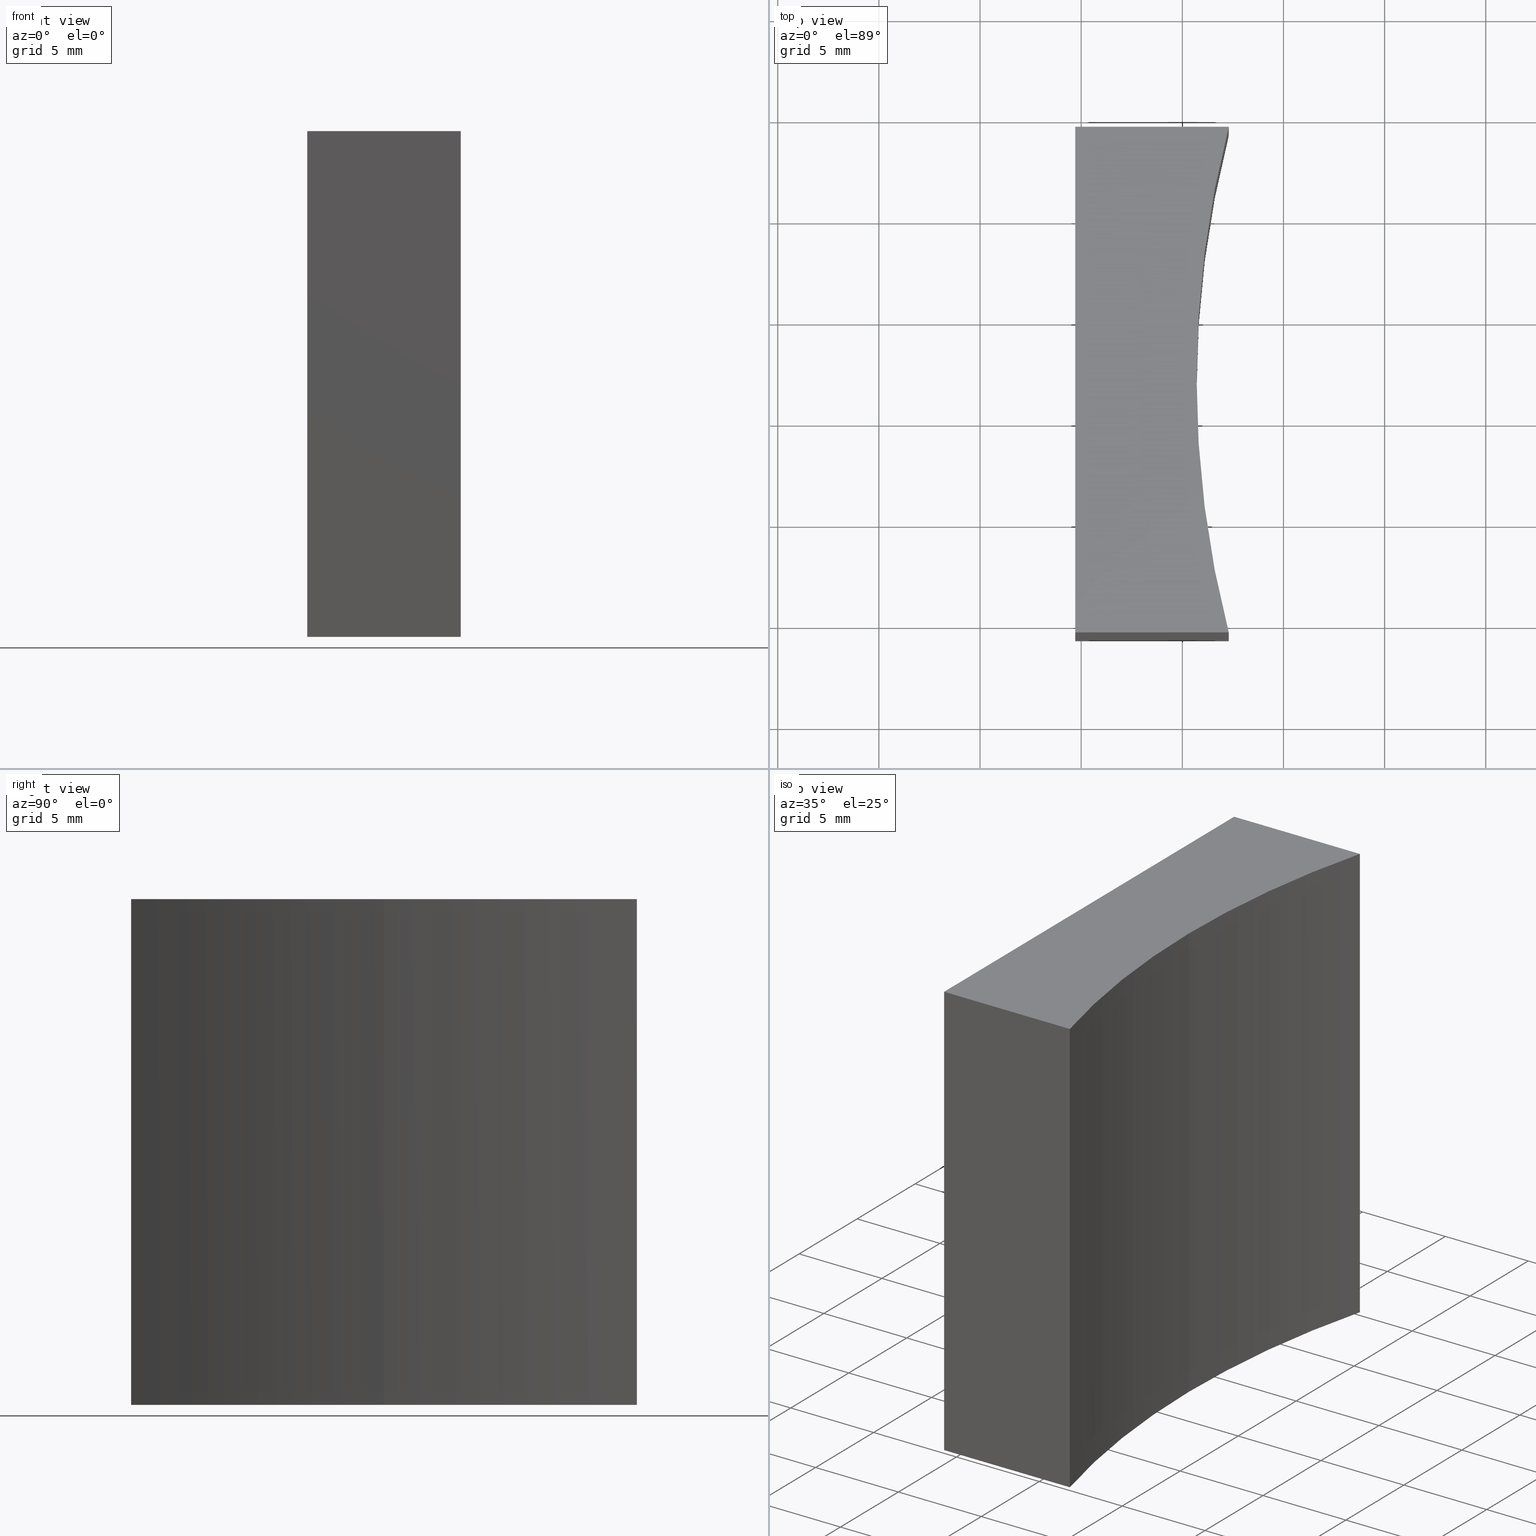
[diagram: canonical four-view strip — front | top / right | iso, engineering-drawing reading convention]
A machine part, canonical four-view strip (front | top / right | iso — engineering-drawing reading convention). The complete STEP part file that produces these views, byte-faithful:
ISO-10303-21;
HEADER;
FILE_DESCRIPTION (( 'STEP AP214' ),
    '1' );
FILE_NAME ('280015.STEP',
    '2019-08-08T02:32:34',
    ( '' ),
    ( '' ),
    'SwSTEP 2.0',
    'SolidWorks 2016',
    '' );
FILE_SCHEMA (( 'AUTOMOTIVE_DESIGN' ));
ENDSEC;

DATA;
#1 = VERTEX_POINT ( 'NONE', #62 ) ;
#2 = CIRCLE ( 'NONE', #221, 49.99999999999998600 ) ;
#3 = ORIENTED_EDGE ( 'NONE', *, *, #23, .T. ) ;
#4 = PRESENTATION_LAYER_ASSIGNMENT (  '', '', ( #152 ) ) ;
#5 = ORIENTED_EDGE ( 'NONE', *, *, #154, .T. ) ;
#6 = CIRCLE ( 'NONE', #75, 49.99999999999998600 ) ;
#7 = VERTEX_POINT ( 'NONE', #140 ) ;
#8 = DIRECTION ( 'NONE',  ( -0.0000000000000000000, -0.0000000000000000000, -1.000000000000000000 ) ) ;
#9 = DIRECTION ( 'NONE',  ( 0.0000000000000000000, 0.0000000000000000000, -1.000000000000000000 ) ) ;
#10 =( LENGTH_UNIT ( ) NAMED_UNIT ( * ) SI_UNIT ( .MILLI., .METRE. ) );
#11 = ORIENTED_EDGE ( 'NONE', *, *, #134, .F. ) ;
#12 = DIRECTION ( 'NONE',  ( 0.0000000000000000000, 0.0000000000000000000, 1.000000000000000000 ) ) ;
#13 = CARTESIAN_POINT ( 'NONE',  ( 284.7071356312820900, 54.35792926776707600, 25.00000000000000000 ) ) ;
#14 = FACE_OUTER_BOUND ( 'NONE', #188, .T. ) ;
#15 = CARTESIAN_POINT ( 'NONE',  ( 340.7071356311532200, 66.85792926776700500, 0.0000000000000000000 ) ) ;
#16 = VECTOR ( 'NONE', #34, 1000.000000000000000 ) ;
#17 = UNCERTAINTY_MEASURE_WITH_UNIT (LENGTH_MEASURE( 1.000000000000000100E-005 ), #68, 'distance_accuracy_value', 'NONE');
#18 = ORIENTED_EDGE ( 'NONE', *, *, #32, .F. ) ;
#19 = VECTOR ( 'NONE', #156, 1000.000000000000000 ) ;
#20 = ORIENTED_EDGE ( 'NONE', *, *, #144, .F. ) ;
#21 = COLOUR_RGB ( '',1.000000000000000000, 1.000000000000000000, 1.000000000000000000 ) ;
#22 = AXIS2_PLACEMENT_3D ( 'NONE', #196, #182, #143 ) ;
#23 = EDGE_CURVE ( 'NONE', #109, #1, #169, .T. ) ;
#24 = LINE ( 'NONE', #198, #229 ) ;
#25 = LINE ( 'NONE', #100, #16 ) ;
#26 = EDGE_LOOP ( 'NONE', ( #20, #162, #59, #208, #11 ) ) ;
#27 = CARTESIAN_POINT ( 'NONE',  ( 284.7071356312820900, 66.85792926776707600, 0.0000000000000000000 ) ) ;
#28 = CARTESIAN_POINT ( 'NONE',  ( 292.2948438035605200, 54.35792926776710500, 25.00000000000000000 ) ) ;
#29 = DIRECTION ( 'NONE',  ( 1.000000000000000000, 0.0000000000000000000, 0.0000000000000000000 ) ) ;
#30 = AXIS2_PLACEMENT_3D ( 'NONE', #102, #121, #197 ) ;
#31 =( NAMED_UNIT ( * ) SI_UNIT ( $, .STERADIAN. ) SOLID_ANGLE_UNIT ( ) );
#32 = EDGE_CURVE ( 'NONE', #86, #133, #105, .T. ) ;
#33 = VECTOR ( 'NONE', #155, 1000.000000000000000 ) ;
#34 = DIRECTION ( 'NONE',  ( -0.0000000000000000000, -0.0000000000000000000, -1.000000000000000000 ) ) ;
#35 = ADVANCED_FACE ( 'NONE', ( #153 ), #176, .T. ) ;
#36 =( NAMED_UNIT ( * ) PLANE_ANGLE_UNIT ( ) SI_UNIT ( $, .RADIAN. ) );
#37 = APPLICATION_CONTEXT ( 'automotive_design' ) ;
#38 = MECHANICAL_DESIGN_GEOMETRIC_PRESENTATION_REPRESENTATION (  '', ( #112 ), #126 ) ;
#39 = ORIENTED_EDGE ( 'NONE', *, *, #40, .F. ) ;
#40 = EDGE_CURVE ( 'NONE', #189, #86, #168, .T. ) ;
#41 = ORIENTED_EDGE ( 'NONE', *, *, #32, .T. ) ;
#42 = AXIS2_PLACEMENT_3D ( 'NONE', #15, #12, #159 ) ;
#43 = EDGE_CURVE ( 'NONE', #205, #7, #222, .T. ) ;
#44 = MECHANICAL_DESIGN_GEOMETRIC_PRESENTATION_REPRESENTATION (  '', ( #152 ), #203 ) ;
#45 = CARTESIAN_POINT ( 'NONE',  ( 284.7071356312820900, 79.35792926776707600, 25.00000000000000000 ) ) ;
#46 = DIRECTION ( 'NONE',  ( -0.0000000000000000000, -1.000000000000000000, -0.0000000000000000000 ) ) ;
#47 = EDGE_CURVE ( 'NONE', #86, #151, #6, .T. ) ;
#48 = PLANE ( 'NONE',  #79 ) ;
#49 = CARTESIAN_POINT ( 'NONE',  ( 284.7071356312820900, 79.35792926776707600, 0.0000000000000000000 ) ) ;
#50 = DIRECTION ( 'NONE',  ( -0.0000000000000000000, -0.0000000000000000000, -1.000000000000000000 ) ) ;
#51 = LINE ( 'NONE', #45, #209 ) ;
#52 = DIRECTION ( 'NONE',  ( 0.0000000000000000000, 0.0000000000000000000, 1.000000000000000000 ) ) ;
#53 = SURFACE_SIDE_STYLE ('',( #167 ) ) ;
#54 = AXIS2_PLACEMENT_3D ( 'NONE', #193, #214, #216 ) ;
#55 = ORIENTED_EDGE ( 'NONE', *, *, #163, .T. ) ;
#56 = FACE_OUTER_BOUND ( 'NONE', #101, .T. ) ;
#57 = EDGE_LOOP ( 'NONE', ( #130, #55, #224, #227 ) ) ;
#58 = ORIENTED_EDGE ( 'NONE', *, *, #115, .F. ) ;
#59 = ORIENTED_EDGE ( 'NONE', *, *, #228, .F. ) ;
#60 = EDGE_LOOP ( 'NONE', ( #3, #58, #150, #210 ) ) ;
#61 = CYLINDRICAL_SURFACE ( 'NONE', #22, 49.99999999999998600 ) ;
#62 = CARTESIAN_POINT ( 'NONE',  ( 284.7071356312820900, 54.35792926776707600, 0.0000000000000000000 ) ) ;
#63 = EDGE_CURVE ( 'NONE', #7, #109, #51, .T. ) ;
#64 = CARTESIAN_POINT ( 'NONE',  ( 290.7071356311532200, 66.85792926776700500, 0.0000000000000000000 ) ) ;
#65 = DIRECTION ( 'NONE',  ( 1.000000000000000000, 0.0000000000000000000, 0.0000000000000000000 ) ) ;
#66 = FILL_AREA_STYLE_COLOUR ( '', #21 ) ;
#67 = ADVANCED_FACE ( 'NONE', ( #111 ), #118, .F. ) ;
#68 =( LENGTH_UNIT ( ) NAMED_UNIT ( * ) SI_UNIT ( .MILLI., .METRE. ) );
#69 = ORIENTED_EDGE ( 'NONE', *, *, #163, .F. ) ;
#70 = SURFACE_STYLE_USAGE ( .BOTH. , #53 ) ;
#71 = DIRECTION ( 'NONE',  ( 1.000000000000000000, 0.0000000000000000000, 0.0000000000000000000 ) ) ;
#72 = AXIS2_PLACEMENT_3D ( 'NONE', #212, #211, #9 ) ;
#73 = VECTOR ( 'NONE', #8, 1000.000000000000000 ) ;
#74 = PRESENTATION_STYLE_ASSIGNMENT (( #119 ) ) ;
#75 = AXIS2_PLACEMENT_3D ( 'NONE', #80, #96, #65 ) ;
#76 = VECTOR ( 'NONE', #175, 1000.000000000000000 ) ;
#77 = FACE_OUTER_BOUND ( 'NONE', #90, .T. ) ;
#78 = ADVANCED_FACE ( 'NONE', ( #14 ), #48, .F. ) ;
#79 = AXIS2_PLACEMENT_3D ( 'NONE', #141, #160, #174 ) ;
#80 = CARTESIAN_POINT ( 'NONE',  ( 340.7071356311532200, 66.85792926776700500, 25.00000000000000000 ) ) ;
#81 = DIRECTION ( 'NONE',  ( 1.000000000000000000, 0.0000000000000000000, 0.0000000000000000000 ) ) ;
#82 = VERTEX_POINT ( 'NONE', #64 ) ;
#83 = ORIENTED_EDGE ( 'NONE', *, *, #40, .T. ) ;
#84 = CARTESIAN_POINT ( 'NONE',  ( 340.7071356311532200, 66.85792926776700500, 0.0000000000000000000 ) ) ;
#85 = ADVANCED_FACE ( 'NONE', ( #200 ), #148, .F. ) ;
#86 = VERTEX_POINT ( 'NONE', #116 ) ;
#87 = CARTESIAN_POINT ( 'NONE',  ( 340.7071356311532200, 66.85792926776700500, 25.00000000000000000 ) ) ;
#88 = AXIS2_PLACEMENT_3D ( 'NONE', #164, #158, #236 ) ;
#89 =( LENGTH_UNIT ( ) NAMED_UNIT ( * ) SI_UNIT ( .MILLI., .METRE. ) );
#90 = EDGE_LOOP ( 'NONE', ( #69, #226, #41, #110 ) ) ;
#91 = ORIENTED_EDGE ( 'NONE', *, *, #43, .T. ) ;
#92 = CLOSED_SHELL ( 'NONE', ( #85, #78, #161, #123, #67, #35, #199 ) ) ;
#93 = LINE ( 'NONE', #166, #235 ) ;
#94 = PRODUCT_RELATED_PRODUCT_CATEGORY ( 'part', '', ( #137 ) ) ;
#95 = UNCERTAINTY_MEASURE_WITH_UNIT (LENGTH_MEASURE( 1.000000000000000100E-005 ), #10, 'distance_accuracy_value', 'NONE');
#96 = DIRECTION ( 'NONE',  ( -0.0000000000000000000, -0.0000000000000000000, -1.000000000000000000 ) ) ;
#97 = DIRECTION ( 'NONE',  ( -0.0000000000000000000, -0.0000000000000000000, -1.000000000000000000 ) ) ;
#98 = PRODUCT_DEFINITION_CONTEXT ( 'detailed design', #220, 'design' ) ;
#99 = CARTESIAN_POINT ( 'NONE',  ( 284.7071356312820900, 54.35792926776707600, 25.00000000000000000 ) ) ;
#100 = CARTESIAN_POINT ( 'NONE',  ( 290.7071356311532200, 66.85792926776700500, 25.00000000000000000 ) ) ;
#101 = EDGE_LOOP ( 'NONE', ( #239, #173, #146, #206 ) ) ;
#102 = CARTESIAN_POINT ( 'NONE',  ( 284.7071356312820900, 79.35792926776707600, 25.00000000000000000 ) ) ;
#103 = DIRECTION ( 'NONE',  ( -1.000000000000000000, -1.828982809132883200E-015, -0.0000000000000000000 ) ) ;
#104 = CARTESIAN_POINT ( 'NONE',  ( 292.2948438035605200, 54.35792926776711200, 0.0000000000000000000 ) ) ;
#105 = LINE ( 'NONE', #191, #33 ) ;
#106 = CARTESIAN_POINT ( 'NONE',  ( 292.2948438035605800, 79.35792926776709100, 25.00000000000000000 ) ) ;
#107 = VECTOR ( 'NONE', #103, 1000.000000000000000 ) ;
#108 = APPLICATION_PROTOCOL_DEFINITION ( 'draft international standard', 'automotive_design', 1998, #220 ) ;
#109 = VERTEX_POINT ( 'NONE', #49 ) ;
#110 = ORIENTED_EDGE ( 'NONE', *, *, #134, .T. ) ;
#111 = FACE_OUTER_BOUND ( 'NONE', #60, .T. ) ;
#112 = STYLED_ITEM ( 'NONE', ( #74 ), #231 ) ;
#113 = VECTOR ( 'NONE', #172, 1000.000000000000000 ) ;
#114 = COLOUR_RGB ( '',1.000000000000000000, 1.000000000000000000, 1.000000000000000000 ) ;
#115 = EDGE_CURVE ( 'NONE', #189, #1, #122, .T. ) ;
#116 = CARTESIAN_POINT ( 'NONE',  ( 292.2948438035605200, 54.35792926776711200, 25.00000000000000000 ) ) ;
#117 = AXIS2_PLACEMENT_3D ( 'NONE', #87, #97, #81 ) ;
#118 = PLANE ( 'NONE',  #72 ) ;
#119 = SURFACE_STYLE_USAGE ( .BOTH. , #234 ) ;
#120 = DIRECTION ( 'NONE',  ( 1.000000000000000000, 0.0000000000000000000, 0.0000000000000000000 ) ) ;
#121 = DIRECTION ( 'NONE',  ( 1.828982809132883200E-015, -1.000000000000000000, 0.0000000000000000000 ) ) ;
#122 = LINE ( 'NONE', #99, #73 ) ;
#123 = ADVANCED_FACE ( 'NONE', ( #56 ), #195, .F. ) ;
#124 = FACE_OUTER_BOUND ( 'NONE', #26, .T. ) ;
#125 = DIRECTION ( 'NONE',  ( -0.0000000000000000000, -0.0000000000000000000, -1.000000000000000000 ) ) ;
#126 =( GEOMETRIC_REPRESENTATION_CONTEXT ( 3 ) GLOBAL_UNCERTAINTY_ASSIGNED_CONTEXT ( ( #95 ) ) GLOBAL_UNIT_ASSIGNED_CONTEXT ( ( #10, #142, #31 ) ) REPRESENTATION_CONTEXT ( 'NONE', 'WORKASPACE' ) );
#127 =( NAMED_UNIT ( * ) SI_UNIT ( $, .STERADIAN. ) SOLID_ANGLE_UNIT ( ) );
#128 = EDGE_CURVE ( 'NONE', #82, #136, #2, .T. ) ;
#129 = ORIENTED_EDGE ( 'NONE', *, *, #139, .T. ) ;
#130 = ORIENTED_EDGE ( 'NONE', *, *, #154, .F. ) ;
#131 = EDGE_CURVE ( 'NONE', #205, #136, #93, .T. ) ;
#132 = AXIS2_PLACEMENT_3D ( 'NONE', #201, #50, #120 ) ;
#133 = VERTEX_POINT ( 'NONE', #104 ) ;
#134 = EDGE_CURVE ( 'NONE', #133, #82, #135, .T. ) ;
#135 = CIRCLE ( 'NONE', #132, 49.99999999999998600 ) ;
#136 = VERTEX_POINT ( 'NONE', #178 ) ;
#137 = PRODUCT ( '280015', '280015', '', ( #183 ) ) ;
#138 = DIRECTION ( 'NONE',  ( -0.0000000000000000000, -0.0000000000000000000, -1.000000000000000000 ) ) ;
#139 = EDGE_CURVE ( 'NONE', #7, #189, #24, .T. ) ;
#140 = CARTESIAN_POINT ( 'NONE',  ( 284.7071356312820900, 79.35792926776707600, 25.00000000000000000 ) ) ;
#141 = CARTESIAN_POINT ( 'NONE',  ( 292.2948438035605200, 54.35792926776710500, 25.00000000000000000 ) ) ;
#142 =( NAMED_UNIT ( * ) PLANE_ANGLE_UNIT ( ) SI_UNIT ( $, .RADIAN. ) );
#143 = DIRECTION ( 'NONE',  ( -1.000000000000000000, 0.0000000000000000000, 0.0000000000000000000 ) ) ;
#144 = EDGE_CURVE ( 'NONE', #1, #133, #177, .T. ) ;
#145 = FILL_AREA_STYLE ('',( #66 ) ) ;
#146 = ORIENTED_EDGE ( 'NONE', *, *, #43, .F. ) ;
#147 =( GEOMETRIC_REPRESENTATION_CONTEXT ( 3 ) GLOBAL_UNCERTAINTY_ASSIGNED_CONTEXT ( ( #17 ) ) GLOBAL_UNIT_ASSIGNED_CONTEXT ( ( #68, #192, #204 ) ) REPRESENTATION_CONTEXT ( 'NONE', 'WORKASPACE' ) );
#148 = CYLINDRICAL_SURFACE ( 'NONE', #54, 49.99999999999998600 ) ;
#149 = PRODUCT_DEFINITION_FORMATION_WITH_SPECIFIED_SOURCE ( '�κ�', '', #137, .NOT_KNOWN. ) ;
#150 = ORIENTED_EDGE ( 'NONE', *, *, #139, .F. ) ;
#151 = VERTEX_POINT ( 'NONE', #237 ) ;
#152 = STYLED_ITEM ( 'NONE', ( #230 ), #186 ) ;
#153 = FACE_OUTER_BOUND ( 'NONE', #170, .T. ) ;
#154 = EDGE_CURVE ( 'NONE', #151, #205, #184, .T. ) ;
#155 = DIRECTION ( 'NONE',  ( -0.0000000000000000000, -0.0000000000000000000, -1.000000000000000000 ) ) ;
#156 = DIRECTION ( 'NONE',  ( -1.000000000000000000, -1.828982809132883200E-015, -0.0000000000000000000 ) ) ;
#157 = PRODUCT_DEFINITION ( 'δ֪', '', #149, #98 ) ;
#158 = DIRECTION ( 'NONE',  ( 0.0000000000000000000, 0.0000000000000000000, 1.000000000000000000 ) ) ;
#159 = DIRECTION ( 'NONE',  ( 1.000000000000000000, 0.0000000000000000000, -0.0000000000000000000 ) ) ;
#160 = DIRECTION ( 'NONE',  ( -3.657965618265793200E-015, 1.000000000000000000, 0.0000000000000000000 ) ) ;
#161 = ADVANCED_FACE ( 'NONE', ( #77 ), #61, .F. ) ;
#162 = ORIENTED_EDGE ( 'NONE', *, *, #23, .F. ) ;
#163 = EDGE_CURVE ( 'NONE', #151, #82, #25, .T. ) ;
#164 = CARTESIAN_POINT ( 'NONE',  ( 340.7071356311532200, 66.85792926776700500, 25.00000000000000000 ) ) ;
#165 = ORIENTED_EDGE ( 'NONE', *, *, #47, .T. ) ;
#166 = CARTESIAN_POINT ( 'NONE',  ( 292.2948438035605800, 79.35792926776709100, 25.00000000000000000 ) ) ;
#167 = SURFACE_STYLE_FILL_AREA ( #145 ) ;
#168 = LINE ( 'NONE', #28, #113 ) ;
#169 = LINE ( 'NONE', #27, #218 ) ;
#170 = EDGE_LOOP ( 'NONE', ( #129, #83, #165, #5, #91 ) ) ;
#171 = PRESENTATION_LAYER_ASSIGNMENT (  '', '', ( #112 ) ) ;
#172 = DIRECTION ( 'NONE',  ( 1.000000000000000000, 3.657965618265793200E-015, -0.0000000000000000000 ) ) ;
#173 = ORIENTED_EDGE ( 'NONE', *, *, #63, .F. ) ;
#174 = DIRECTION ( 'NONE',  ( -1.000000000000000000, -3.657965618265793200E-015, 0.0000000000000000000 ) ) ;
#175 = DIRECTION ( 'NONE',  ( 1.000000000000000000, 3.657965618265793200E-015, -0.0000000000000000000 ) ) ;
#176 = PLANE ( 'NONE',  #88 ) ;
#177 = LINE ( 'NONE', #179, #76 ) ;
#178 = CARTESIAN_POINT ( 'NONE',  ( 292.2948438035605800, 79.35792926776709100, 0.0000000000000000000 ) ) ;
#179 = CARTESIAN_POINT ( 'NONE',  ( 292.2948438035605200, 54.35792926776710500, 0.0000000000000000000 ) ) ;
#180 = SURFACE_STYLE_FILL_AREA ( #215 ) ;
#181 = AXIS2_PLACEMENT_3D ( 'NONE', #194, #52, #71 ) ;
#182 = DIRECTION ( 'NONE',  ( -0.0000000000000000000, -0.0000000000000000000, -1.000000000000000000 ) ) ;
#183 = PRODUCT_CONTEXT ( 'NONE', #37, 'mechanical' ) ;
#184 = CIRCLE ( 'NONE', #117, 49.99999999999998600 ) ;
#185 = ORIENTED_EDGE ( 'NONE', *, *, #115, .T. ) ;
#186 = ADVANCED_BREP_SHAPE_REPRESENTATION ( '280015', ( #231, #181 ), #147 ) ;
#187 = PRODUCT_DEFINITION_SHAPE ( 'NONE', 'NONE',  #157 ) ;
#188 = EDGE_LOOP ( 'NONE', ( #232, #18, #39, #185 ) ) ;
#189 = VERTEX_POINT ( 'NONE', #13 ) ;
#190 = CARTESIAN_POINT ( 'NONE',  ( 284.7071356312820900, 79.35792926776707600, 25.00000000000000000 ) ) ;
#191 = CARTESIAN_POINT ( 'NONE',  ( 292.2948438035605200, 54.35792926776711200, 25.00000000000000000 ) ) ;
#192 =( NAMED_UNIT ( * ) PLANE_ANGLE_UNIT ( ) SI_UNIT ( $, .RADIAN. ) );
#193 = CARTESIAN_POINT ( 'NONE',  ( 340.7071356311532200, 66.85792926776700500, 25.00000000000000000 ) ) ;
#194 = CARTESIAN_POINT ( 'NONE',  ( 0.0000000000000000000, 0.0000000000000000000, 0.0000000000000000000 ) ) ;
#195 = PLANE ( 'NONE',  #30 ) ;
#196 = CARTESIAN_POINT ( 'NONE',  ( 340.7071356311532200, 66.85792926776700500, 25.00000000000000000 ) ) ;
#197 = DIRECTION ( 'NONE',  ( 1.000000000000000000, 1.828982809132883200E-015, 0.0000000000000000000 ) ) ;
#198 = CARTESIAN_POINT ( 'NONE',  ( 284.7071356312820900, 54.35792926776707600, 25.00000000000000000 ) ) ;
#199 = ADVANCED_FACE ( 'NONE', ( #124 ), #238, .F. ) ;
#200 = FACE_OUTER_BOUND ( 'NONE', #57, .T. ) ;
#201 = CARTESIAN_POINT ( 'NONE',  ( 340.7071356311532200, 66.85792926776700500, 0.0000000000000000000 ) ) ;
#202 = APPLICATION_PROTOCOL_DEFINITION ( 'draft international standard', 'automotive_design', 1998, #37 ) ;
#203 =( GEOMETRIC_REPRESENTATION_CONTEXT ( 3 ) GLOBAL_UNCERTAINTY_ASSIGNED_CONTEXT ( ( #223 ) ) GLOBAL_UNIT_ASSIGNED_CONTEXT ( ( #89, #36, #127 ) ) REPRESENTATION_CONTEXT ( 'NONE', 'WORKASPACE' ) );
#204 =( NAMED_UNIT ( * ) SI_UNIT ( $, .STERADIAN. ) SOLID_ANGLE_UNIT ( ) );
#205 = VERTEX_POINT ( 'NONE', #106 ) ;
#206 = ORIENTED_EDGE ( 'NONE', *, *, #131, .T. ) ;
#207 = LINE ( 'NONE', #217, #107 ) ;
#208 = ORIENTED_EDGE ( 'NONE', *, *, #128, .F. ) ;
#209 = VECTOR ( 'NONE', #138, 1000.000000000000000 ) ;
#210 = ORIENTED_EDGE ( 'NONE', *, *, #63, .T. ) ;
#211 = DIRECTION ( 'NONE',  ( 1.000000000000000000, 0.0000000000000000000, 0.0000000000000000000 ) ) ;
#212 = CARTESIAN_POINT ( 'NONE',  ( 284.7071356312820900, 66.85792926776707600, 25.00000000000000000 ) ) ;
#213 = FILL_AREA_STYLE_COLOUR ( '', #114 ) ;
#214 = DIRECTION ( 'NONE',  ( -0.0000000000000000000, -0.0000000000000000000, -1.000000000000000000 ) ) ;
#215 = FILL_AREA_STYLE ('',( #213 ) ) ;
#216 = DIRECTION ( 'NONE',  ( -1.000000000000000000, 0.0000000000000000000, 0.0000000000000000000 ) ) ;
#217 = CARTESIAN_POINT ( 'NONE',  ( 284.7071356312820900, 79.35792926776707600, 0.0000000000000000000 ) ) ;
#218 = VECTOR ( 'NONE', #233, 1000.000000000000000 ) ;
#219 = DIRECTION ( 'NONE',  ( -0.0000000000000000000, -0.0000000000000000000, -1.000000000000000000 ) ) ;
#220 = APPLICATION_CONTEXT ( 'automotive_design' ) ;
#221 = AXIS2_PLACEMENT_3D ( 'NONE', #84, #219, #29 ) ;
#222 = LINE ( 'NONE', #190, #19 ) ;
#223 = UNCERTAINTY_MEASURE_WITH_UNIT (LENGTH_MEASURE( 1.000000000000000100E-005 ), #89, 'distance_accuracy_value', 'NONE');
#224 = ORIENTED_EDGE ( 'NONE', *, *, #128, .T. ) ;
#225 = SHAPE_DEFINITION_REPRESENTATION ( #187, #186 ) ;
#226 = ORIENTED_EDGE ( 'NONE', *, *, #47, .F. ) ;
#227 = ORIENTED_EDGE ( 'NONE', *, *, #131, .F. ) ;
#228 = EDGE_CURVE ( 'NONE', #136, #109, #207, .T. ) ;
#229 = VECTOR ( 'NONE', #46, 1000.000000000000000 ) ;
#230 = PRESENTATION_STYLE_ASSIGNMENT (( #70 ) ) ;
#231 = MANIFOLD_SOLID_BREP ( '͹̨-����1', #92 ) ;
#232 = ORIENTED_EDGE ( 'NONE', *, *, #144, .T. ) ;
#233 = DIRECTION ( 'NONE',  ( -0.0000000000000000000, -1.000000000000000000, -0.0000000000000000000 ) ) ;
#234 = SURFACE_SIDE_STYLE ('',( #180 ) ) ;
#235 = VECTOR ( 'NONE', #125, 1000.000000000000000 ) ;
#236 = DIRECTION ( 'NONE',  ( 1.000000000000000000, 0.0000000000000000000, -0.0000000000000000000 ) ) ;
#237 = CARTESIAN_POINT ( 'NONE',  ( 290.7071356311532200, 66.85792926776700500, 25.00000000000000000 ) ) ;
#238 = PLANE ( 'NONE',  #42 ) ;
#239 = ORIENTED_EDGE ( 'NONE', *, *, #228, .T. ) ;
ENDSEC;
END-ISO-10303-21;
